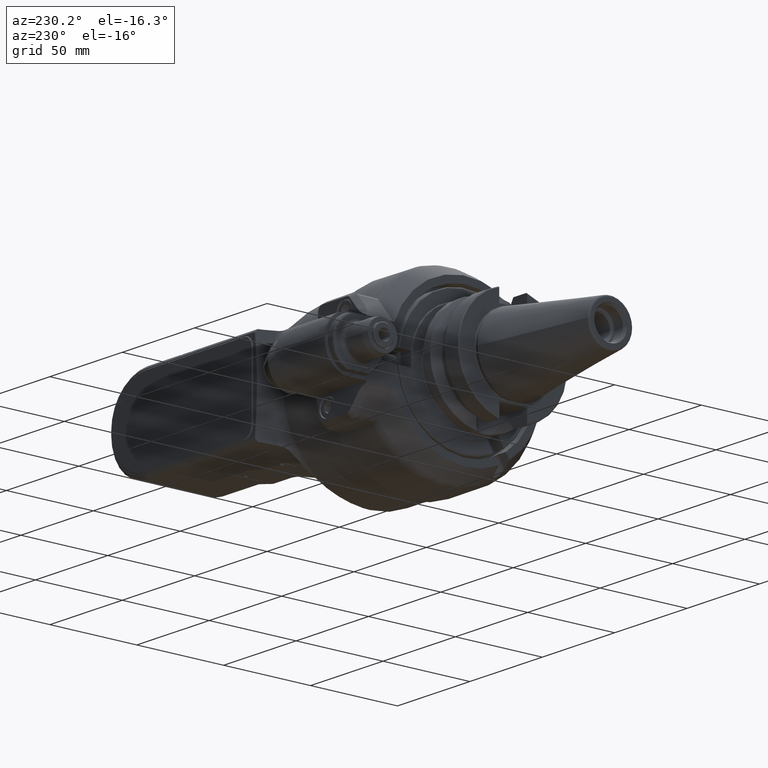
[diagram: clean part render]
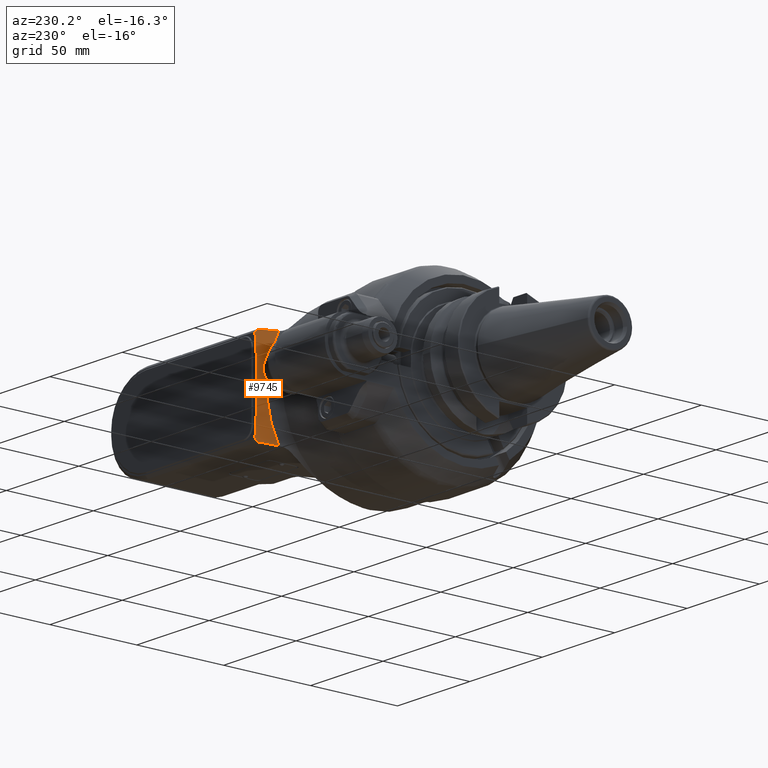
[diagram: same view with one face highlighted and labeled with its STEP entity id]
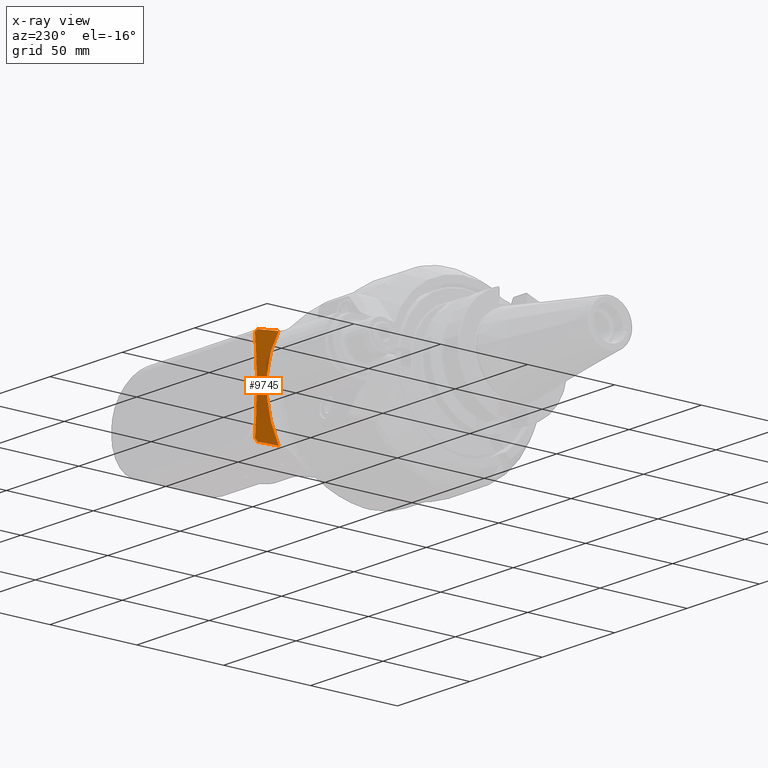
[diagram: x-ray of the same camera — body ghosted, the highlighted face saturated]
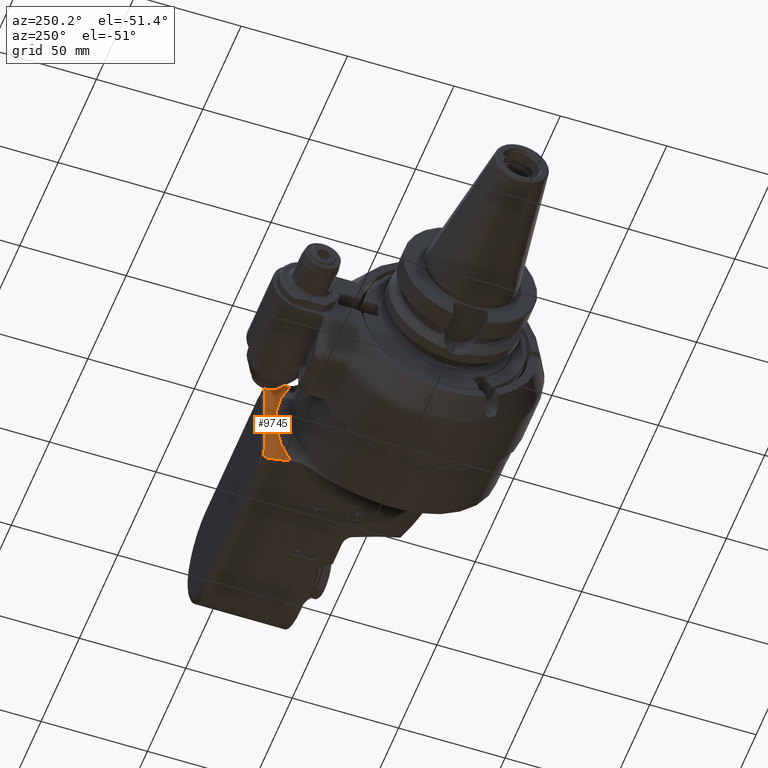
[diagram: same view with one face highlighted and labeled with its STEP entity id]
A machine part, auxiliary view. The second image highlights one B-rep face of the part: STEP entity #9745.
The next image is the same camera in x-ray: the body ghosted, the highlighted face saturated — about 4% of this face is hidden behind the body in this view.
A second angle (auxiliary view) of the same face is appended — the face is thin or edge-on in the first view.
In plain terms, the highlighted conical surface has half-angle 75 deg.
Its self-contained STEP definition (entity closure, byte-faithful):
#353=(
BOUNDED_CURVE()
B_SPLINE_CURVE(2,(#47063,#47064,#47065),.UNSPECIFIED.,.F.,.F.)
B_SPLINE_CURVE_WITH_KNOTS((3,3),(-3.55250082046788,-3.02489236647117),
 .UNSPECIFIED.)
CURVE()
GEOMETRIC_REPRESENTATION_ITEM()
RATIONAL_B_SPLINE_CURVE((1.11123295375793,1.10401746791071,1.09649171928394))
REPRESENTATION_ITEM('')
);
#354=(
BOUNDED_CURVE()
B_SPLINE_CURVE(2,(#47118,#47119,#47120),.UNSPECIFIED.,.F.,.F.)
B_SPLINE_CURVE_WITH_KNOTS((3,3),(-27.8436752077244,-27.1598147584142),
 .UNSPECIFIED.)
CURVE()
GEOMETRIC_REPRESENTATION_ITEM()
RATIONAL_B_SPLINE_CURVE((3.38306728516075,3.37283838871902,3.36167441608995))
REPRESENTATION_ITEM('')
);
#355=(
BOUNDED_CURVE()
B_SPLINE_CURVE(2,(#47136,#47137,#47138),.UNSPECIFIED.,.F.,.F.)
B_SPLINE_CURVE_WITH_KNOTS((3,3),(34.201349687581,54.8024080948049),
 .UNSPECIFIED.)
CURVE()
GEOMETRIC_REPRESENTATION_ITEM()
RATIONAL_B_SPLINE_CURVE((4.09328628249377,4.44349447340158,4.09328628249377))
REPRESENTATION_ITEM('')
);
#356=(
BOUNDED_CURVE()
B_SPLINE_CURVE(2,(#47152,#47153,#47154),.UNSPECIFIED.,.F.,.F.)
B_SPLINE_CURVE_WITH_KNOTS((3,3),(-27.8436752077164,-27.1598147584141),
 .UNSPECIFIED.)
CURVE()
GEOMETRIC_REPRESENTATION_ITEM()
RATIONAL_B_SPLINE_CURVE((3.38306728516051,3.37283838871889,3.36167441608995))
REPRESENTATION_ITEM('')
);
#357=(
BOUNDED_CURVE()
B_SPLINE_CURVE(2,(#47167,#47168,#47169),.UNSPECIFIED.,.F.,.F.)
B_SPLINE_CURVE_WITH_KNOTS((3,3),(-17.1593879355143,-16.7350583084526),
 .UNSPECIFIED.)
CURVE()
GEOMETRIC_REPRESENTATION_ITEM()
RATIONAL_B_SPLINE_CURVE((1.07624223473206,1.08186507311401,1.08716319750964))
REPRESENTATION_ITEM('')
);
#710=CONICAL_SURFACE('',#10761,58.20468813299,1.30899693899575);
#1160=FACE_OUTER_BOUND('',#1819,.T.);
#1819=EDGE_LOOP('',(#8322,#8323,#8324,#8325,#8326,#8327,#8328,#8329));
#2393=CIRCLE('',#10762,53.44708572938);
#2663=B_SPLINE_CURVE_WITH_KNOTS('',3,(#47156,#47157,#47158,#47159),
 .UNSPECIFIED.,.F.,.F.,(4,4),(-2.20262870848099,-1.43728453378008),
 .UNSPECIFIED.);
#2664=B_SPLINE_CURVE_WITH_KNOTS('',3,(#47163,#47164,#47165,#47166),
 .UNSPECIFIED.,.F.,.F.,(4,4),(-2.02617021183112,-1.26083003768953),
 .UNSPECIFIED.);
#4644=VERTEX_POINT('',#47060);
#4645=VERTEX_POINT('',#47062);
#4663=VERTEX_POINT('',#47115);
#4664=VERTEX_POINT('',#47117);
#4670=VERTEX_POINT('',#47134);
#4677=VERTEX_POINT('',#47155);
#4678=VERTEX_POINT('',#47160);
#4679=VERTEX_POINT('',#47162);
#5907=EDGE_CURVE('',#4645,#4644,#353,.T.);
#5933=EDGE_CURVE('',#4664,#4663,#354,.T.);
#5942=EDGE_CURVE('',#4670,#4663,#355,.T.);
#5949=EDGE_CURVE('',#4645,#4670,#356,.T.);
#5950=EDGE_CURVE('',#4644,#4677,#2663,.T.);
#5951=EDGE_CURVE('',#4678,#4677,#2393,.T.);
#5952=EDGE_CURVE('',#4678,#4679,#2664,.T.);
#5953=EDGE_CURVE('',#4679,#4664,#357,.T.);
#8322=ORIENTED_EDGE('',*,*,#5942,.F.);
#8323=ORIENTED_EDGE('',*,*,#5949,.F.);
#8324=ORIENTED_EDGE('',*,*,#5907,.T.);
#8325=ORIENTED_EDGE('',*,*,#5950,.T.);
#8326=ORIENTED_EDGE('',*,*,#5951,.F.);
#8327=ORIENTED_EDGE('',*,*,#5952,.T.);
#8328=ORIENTED_EDGE('',*,*,#5953,.T.);
#8329=ORIENTED_EDGE('',*,*,#5933,.T.);
#9745=ADVANCED_FACE('',(#1160),#710,.T.);
#10761=AXIS2_PLACEMENT_3D('',#47151,#13033,#13034);
#10762=AXIS2_PLACEMENT_3D('',#47161,#13035,#13036);
#13033=DIRECTION('center_axis',(1.,0.,0.));
#13034=DIRECTION('ref_axis',(0.,1.,8.06849888047176E-9));
#13035=DIRECTION('center_axis',(-1.,0.,0.));
#13036=DIRECTION('ref_axis',(0.,1.,0.));
#47060=CARTESIAN_POINT('',(23.9999989324763,54.2915815431129,-26.0000018281202));
#47062=CARTESIAN_POINT('',(24.5356584894045,56.4999998496123,-26.0000000284918));
#47063=CARTESIAN_POINT('Ctrl Pts',(24.5356584746925,56.4999998531934,-26.));
#47064=CARTESIAN_POINT('Ctrl Pts',(24.2624895548507,55.3777549222906,-26.));
#47065=CARTESIAN_POINT('Ctrl Pts',(23.9999980011048,54.2915817681603,-26.));
#47115=CARTESIAN_POINT('',(24.7411844497452,57.9999999912408,24.500000021165));
#47117=CARTESIAN_POINT('',(24.5356584893939,56.4999998495885,26.0000000285014));
#47118=CARTESIAN_POINT('Ctrl Pts',(24.5356584985931,56.4999999099392,26.0000000900609));
#47119=CARTESIAN_POINT('Ctrl Pts',(24.6336044530805,57.2454035004435,25.2545964995566));
#47120=CARTESIAN_POINT('Ctrl Pts',(24.7411844358928,57.9999999033716,24.5000000966285));
#47134=CARTESIAN_POINT('',(24.7411844497452,57.9999999912407,-24.500000021165));
#47136=CARTESIAN_POINT('Ctrl Pts',(24.7411844661719,58.,-24.500000158281));
#47137=CARTESIAN_POINT('Ctrl Pts',(22.1866950423019,58.,8.5265128291212E-14));
#47138=CARTESIAN_POINT('Ctrl Pts',(24.7411844661719,58.,24.5000001582812));
#47151=CARTESIAN_POINT('Origin',(23.46638879073,0.,0.));
#47152=CARTESIAN_POINT('Ctrl Pts',(24.5356584985953,56.4999999099564,-26.0000000900436));
#47153=CARTESIAN_POINT('Ctrl Pts',(24.6336044530817,57.2454035004522,-25.2545964995477));
#47154=CARTESIAN_POINT('Ctrl Pts',(24.7411844358928,57.9999999033716,-24.5000000966283));
#47155=CARTESIAN_POINT('',(22.1915935114568,46.4535624137935,-26.4321336375557));
#47156=CARTESIAN_POINT('Ctrl Pts',(23.9999980011124,54.291581768192,-26.0000000000006));
#47157=CARTESIAN_POINT('Ctrl Pts',(23.3529116769087,51.6139800383709,-26.0000003549449));
#47158=CARTESIAN_POINT('Ctrl Pts',(22.7362079477193,48.949154198462,-26.1560913594333));
#47159=CARTESIAN_POINT('Ctrl Pts',(22.1915936117499,46.4535624655588,-26.4321343034158));
#47160=CARTESIAN_POINT('',(22.1915932516688,46.4535609840476,26.4321341898215));
#47161=CARTESIAN_POINT('Origin',(22.19159306877,0.,0.));
#47162=CARTESIAN_POINT('',(23.999991517439,54.2915372364053,25.9999982556788));
#47163=CARTESIAN_POINT('Ctrl Pts',(22.1915932931062,46.4535610054344,26.4321344649234));
#47164=CARTESIAN_POINT('Ctrl Pts',(22.7362067461788,48.9491487547856,26.1560919073108));
#47165=CARTESIAN_POINT('Ctrl Pts',(23.3529058339949,51.6139546445792,26.0000020577191));
#47166=CARTESIAN_POINT('Ctrl Pts',(23.999987475348,54.2915382132437,26.0000000000202));
#47167=CARTESIAN_POINT('Ctrl Pts',(23.9999874753454,54.2915382132426,26.));
#47168=CARTESIAN_POINT('Ctrl Pts',(24.262484079671,55.3777324289096,26.));
#47169=CARTESIAN_POINT('Ctrl Pts',(24.5356584746864,56.4999998531685,26.));